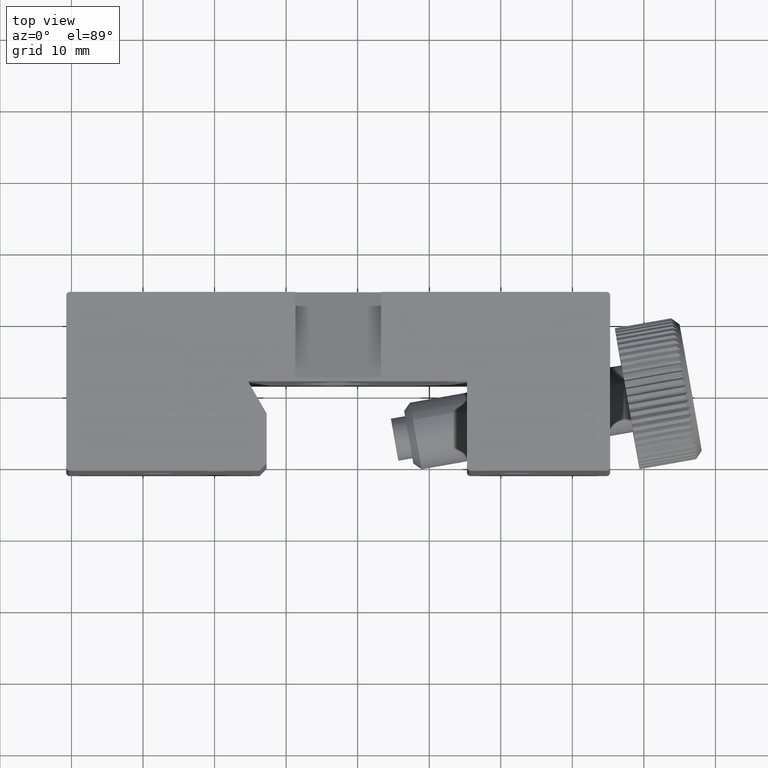
[diagram: clean part render]
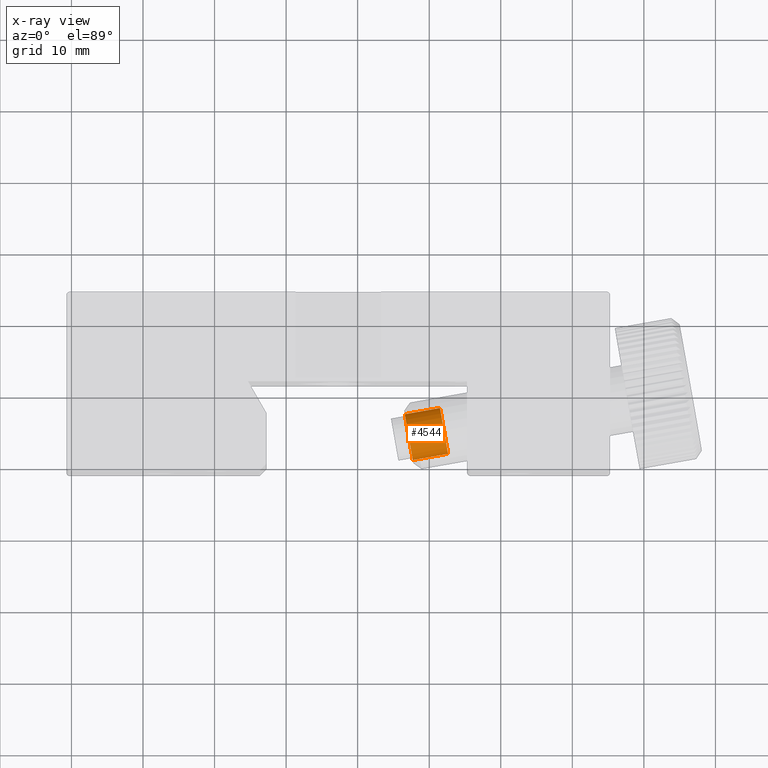
[diagram: x-ray — body ghosted, one internal face saturated and labeled with its STEP entity id]
A machine part, top view, then the same camera in x-ray: the body is ghosted and one INTERNAL B-rep face — a face not visible from any outside direction — is saturated and labeled: STEP entity #4544.
In plain terms, the highlighted cylindrical surface (bore or boss wall) has radius 3.25 mm, axis along (-0.9848, -0.1736, 0).
Its self-contained STEP definition (entity closure, byte-faithful):
#117 = FACE_OUTER_BOUND ( 'NONE', #6666, .T. ) ;
#123 = FACE_OUTER_BOUND ( 'NONE', #6581, .T. ) ;
#125 = CYLINDRICAL_SURFACE ( 'NONE', #7137, 3.249999999999999600 ) ;
#1392 = EDGE_CURVE ( 'NONE', #4301, #4301, #1888, .T. ) ;
#1393 = EDGE_CURVE ( 'NONE', #4302, #4302, #1889, .T. ) ;
#1888 = CIRCLE ( 'NONE', #3362, 3.249999999999999600 ) ;
#1889 = CIRCLE ( 'NONE', #3363, 3.249999999999999100 ) ;
#2273 = ORIENTED_EDGE ( 'NONE', *, *, #1393, .F. ) ;
#2274 = ORIENTED_EDGE ( 'NONE', *, *, #1392, .T. ) ;
#2636 = DIRECTION ( 'NONE',  ( -0.9848077530122074700, -0.1736481776669335500, 1.132564237931847500E-016 ) ) ;
#2638 = DIRECTION ( 'NONE',  ( 0.1537294716734704800, -0.8718431578411716100, 0.4650341467726102400 ) ) ;
#2641 = CARTESIAN_POINT ( 'NONE',  ( -12.85938058421277000, -5.882629524756470800, 1.552060820901417200E-014 ) ) ;
#3362 = AXIS2_PLACEMENT_3D ( 'NONE', #3820, #3821, #3822 ) ;
#3363 = AXIS2_PLACEMENT_3D ( 'NONE', #3823, #3824, #3825 ) ;
#3820 = CARTESIAN_POINT ( 'NONE',  ( -12.85938058421277000, -5.882629524756470800, 1.552060820901417200E-014 ) ) ;
#3821 = DIRECTION ( 'NONE',  ( -0.9848077530122076900, -0.1736481776669335800, 1.132564237931847800E-016 ) ) ;
#3822 = DIRECTION ( 'NONE',  ( 0.1537294716734704800, -0.8718431578411716100, 0.4650341467726102900 ) ) ;
#3823 = CARTESIAN_POINT ( 'NONE',  ( -7.935341819151732400, -5.014388636421803500, 1.495432609004824800E-014 ) ) ;
#3824 = DIRECTION ( 'NONE',  ( -0.9848077530122076900, -0.1736481776669335800, 1.132564237931847800E-016 ) ) ;
#3825 = DIRECTION ( 'NONE',  ( 0.1537294716734702300, -0.8718431578411715000, 0.4650341467726101800 ) ) ;
#4301 = VERTEX_POINT ( 'NONE', #5347 ) ;
#4302 = VERTEX_POINT ( 'NONE', #5348 ) ;
#4544 = ADVANCED_FACE ( 'NONE', ( #117, #123 ), #125, .F. ) ;
#5347 = CARTESIAN_POINT ( 'NONE',  ( -12.35975980127399200, -8.716119787740279200, 1.511360977010998800 ) ) ;
#5348 = CARTESIAN_POINT ( 'NONE',  ( -7.435721036212954400, -7.847878899405610100, 1.511360977010997500 ) ) ;
#6581 = EDGE_LOOP ( 'NONE', ( #2274 ) ) ;
#6666 = EDGE_LOOP ( 'NONE', ( #2273 ) ) ;
#7137 = AXIS2_PLACEMENT_3D ( 'NONE', #2641, #2636, #2638 ) ;